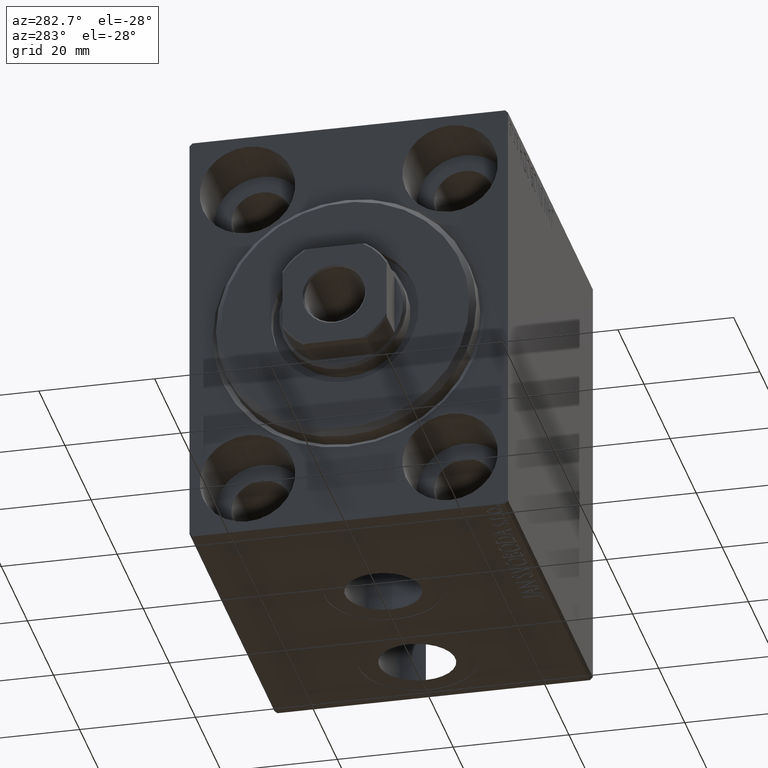
[diagram: clean part render]
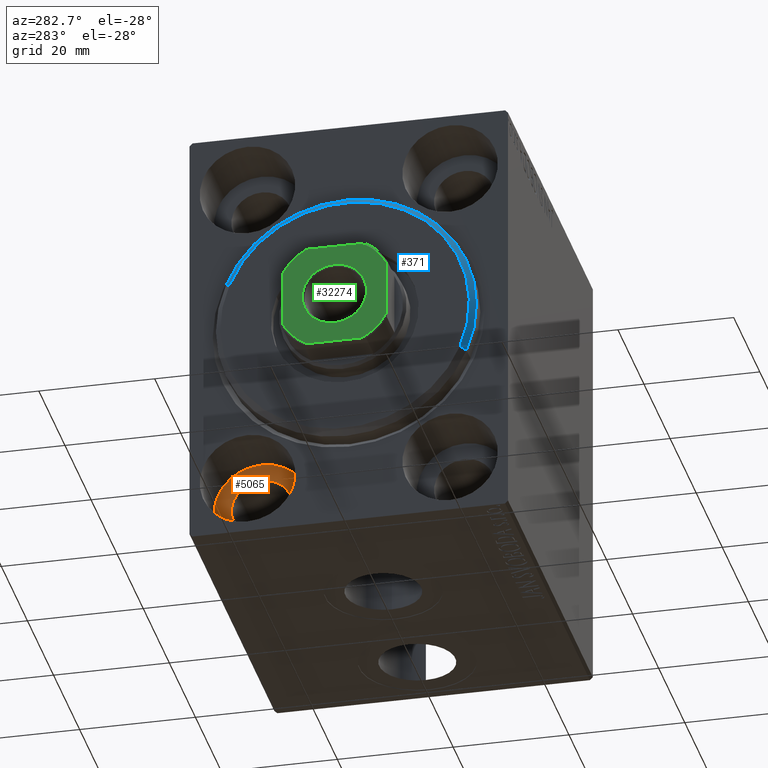
[diagram: same view with three faces highlighted in distinct colors, each labeled with its STEP entity id]
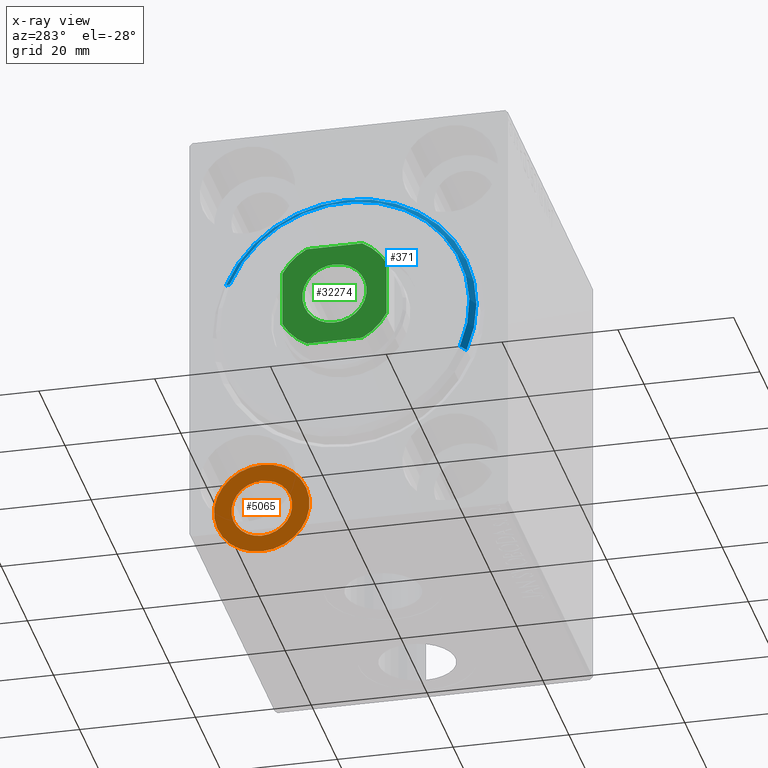
[diagram: x-ray of the same camera — body ghosted, the three highlighted faces saturated]
A machine part, auxiliary view with three faces highlighted in distinct colors.
The next image is the same camera in x-ray (body ghosted, the three faces saturated) — at least one of them is partly hidden behind the body in this view.
Their STEP definitions:

[orange] entity #5065 — the highlighted planar face has unit normal (-1, 0, 0).
#1868 = DIRECTION ( 'NONE',  ( -1.000000000000000000, 0.000000000000000000, 0.000000000000000000 ) ) ;
#3042 = AXIS2_PLACEMENT_3D ( 'NONE', #31135, #5649, #24279 ) ;
#3182 = DIRECTION ( 'NONE',  ( 0.000000000000000000, 0.000000000000000000, 1.000000000000000000 ) ) ;
#4234 = AXIS2_PLACEMENT_3D ( 'NONE', #41263, #23928, #3182 ) ;
#5065 = ADVANCED_FACE ( 'NONE', ( #31236, #27355 ), #34662, .T. ) ;
#5649 = DIRECTION ( 'NONE',  ( -1.000000000000000000, 0.000000000000000000, 0.000000000000000000 ) ) ;
#7377 = VERTEX_POINT ( 'NONE', #8417 ) ;
#8243 = ORIENTED_EDGE ( 'NONE', *, *, #23482, .F. ) ;
#8417 = CARTESIAN_POINT ( 'NONE',  ( 10.99999999999999645, 17.49999999999999645, -32.75000000000000000 ) ) ;
#13776 = CARTESIAN_POINT ( 'NONE',  ( 11.00000000000000000, 17.49999999999999645, -27.50000000000000355 ) ) ;
#15768 = AXIS2_PLACEMENT_3D ( 'NONE', #43834, #1868, #40863 ) ;
#16622 = CIRCLE ( 'NONE', #44281, 8.250000000000000000 ) ;
#17191 = DIRECTION ( 'NONE',  ( -1.000000000000000000, 0.000000000000000000, 0.000000000000000000 ) ) ;
#18908 = EDGE_CURVE ( 'NONE', #38988, #38773, #44191, .T. ) ;
#20386 = DIRECTION ( 'NONE',  ( 0.000000000000000000, 0.000000000000000000, 1.000000000000000000 ) ) ;
#23482 = EDGE_CURVE ( 'NONE', #30071, #7377, #43431, .T. ) ;
#23928 = DIRECTION ( 'NONE',  ( -1.000000000000000000, 0.000000000000000000, 0.000000000000000000 ) ) ;
#24279 = DIRECTION ( 'NONE',  ( 0.000000000000000000, 0.000000000000000000, 1.000000000000000000 ) ) ;
#24894 = CARTESIAN_POINT ( 'NONE',  ( 10.99999999999999645, 17.49999999999999645, -22.25000000000000355 ) ) ;
#26062 = EDGE_CURVE ( 'NONE', #38773, #38988, #16622, .T. ) ;
#26627 = CARTESIAN_POINT ( 'NONE',  ( 11.00000000000000000, 17.49999999999999645, -19.25000000000000355 ) ) ;
#27355 = FACE_OUTER_BOUND ( 'NONE', #29934, .T. ) ;
#29814 = CARTESIAN_POINT ( 'NONE',  ( 11.00000000000000000, 17.49999999999999645, -27.50000000000000355 ) ) ;
#29934 = EDGE_LOOP ( 'NONE', ( #42011, #39516 ) ) ;
#30071 = VERTEX_POINT ( 'NONE', #24894 ) ;
#31135 = CARTESIAN_POINT ( 'NONE',  ( 10.99999999999999645, 17.49999999999999645, -27.50000000000000355 ) ) ;
#31236 = FACE_BOUND ( 'NONE', #39069, .T. ) ;
#31872 = CARTESIAN_POINT ( 'NONE',  ( 11.00000000000000000, 17.49999999999999645, -35.75000000000000711 ) ) ;
#32888 = CIRCLE ( 'NONE', #3042, 5.250000000000000888 ) ;
#34662 = PLANE ( 'NONE',  #4234 ) ;
#36921 = AXIS2_PLACEMENT_3D ( 'NONE', #29814, #43714, #37797 ) ;
#37797 = DIRECTION ( 'NONE',  ( 0.000000000000000000, 0.000000000000000000, 1.000000000000000000 ) ) ;
#38773 = VERTEX_POINT ( 'NONE', #26627 ) ;
#38988 = VERTEX_POINT ( 'NONE', #31872 ) ;
#39069 = EDGE_LOOP ( 'NONE', ( #8243, #43747 ) ) ;
#39516 = ORIENTED_EDGE ( 'NONE', *, *, #18908, .T. ) ;
#39964 = EDGE_CURVE ( 'NONE', #7377, #30071, #32888, .T. ) ;
#40863 = DIRECTION ( 'NONE',  ( 0.000000000000000000, 0.000000000000000000, 1.000000000000000000 ) ) ;
#41263 = CARTESIAN_POINT ( 'NONE',  ( 11.00000000000000000, 17.49999999999999645, -27.50000000000000355 ) ) ;
#42011 = ORIENTED_EDGE ( 'NONE', *, *, #26062, .T. ) ;
#43431 = CIRCLE ( 'NONE', #15768, 5.250000000000000888 ) ;
#43714 = DIRECTION ( 'NONE',  ( -1.000000000000000000, 0.000000000000000000, 0.000000000000000000 ) ) ;
#43747 = ORIENTED_EDGE ( 'NONE', *, *, #39964, .F. ) ;
#43834 = CARTESIAN_POINT ( 'NONE',  ( 10.99999999999999645, 17.49999999999999645, -27.50000000000000355 ) ) ;
#44191 = CIRCLE ( 'NONE', #36921, 8.250000000000000000 ) ;
#44281 = AXIS2_PLACEMENT_3D ( 'NONE', #13776, #17191, #20386 ) ;

[blue] entity #371 — the highlighted conical surface has half-angle 45 deg.
#29 = EDGE_CURVE ( 'NONE', #9229, #985, #6282, .T. ) ;
#371 = ADVANCED_FACE ( 'NONE', ( #36620 ), #31084, .T. ) ;
#668 = ORIENTED_EDGE ( 'NONE', *, *, #24312, .F. ) ;
#985 = VERTEX_POINT ( 'NONE', #6141 ) ;
#2035 = CARTESIAN_POINT ( 'NONE',  ( 3.000000000000000000, 2.694222958124177598E-15, -21.50000000000000355 ) ) ;
#2554 = LINE ( 'NONE', #36574, #9258 ) ;
#6141 = CARTESIAN_POINT ( 'NONE',  ( 1.999999999999992228, 0.000000000000000000, 22.50000000000000355 ) ) ;
#6282 = CIRCLE ( 'NONE', #38334, 22.50000000000000355 ) ;
#6439 = DIRECTION ( 'NONE',  ( 1.000000000000000000, -0.000000000000000000, 0.000000000000000000 ) ) ;
#7764 = DIRECTION ( 'NONE',  ( -1.000000000000000000, 0.000000000000000000, 0.000000000000000000 ) ) ;
#9229 = VERTEX_POINT ( 'NONE', #35839 ) ;
#9258 = VECTOR ( 'NONE', #40873, 1000.000000000000000 ) ;
#9363 = VERTEX_POINT ( 'NONE', #2035 ) ;
#11023 = VERTEX_POINT ( 'NONE', #19000 ) ;
#12387 = ORIENTED_EDGE ( 'NONE', *, *, #29960, .F. ) ;
#13968 = DIRECTION ( 'NONE',  ( 0.000000000000000000, 0.000000000000000000, -1.000000000000000000 ) ) ;
#14541 = AXIS2_PLACEMENT_3D ( 'NONE', #34287, #6439, #13968 ) ;
#14840 = DIRECTION ( 'NONE',  ( 0.000000000000000000, 0.000000000000000000, -1.000000000000000000 ) ) ;
#15092 = VECTOR ( 'NONE', #27881, 1000.000000000000000 ) ;
#19000 = CARTESIAN_POINT ( 'NONE',  ( 3.000000000000000000, 0.000000000000000000, 21.50000000000000355 ) ) ;
#19441 = EDGE_LOOP ( 'NONE', ( #668, #12387, #35780, #36119 ) ) ;
#20153 = DIRECTION ( 'NONE',  ( 0.000000000000000000, 0.000000000000000000, 1.000000000000000000 ) ) ;
#24312 = EDGE_CURVE ( 'NONE', #9363, #9229, #2554, .T. ) ;
#24421 = EDGE_CURVE ( 'NONE', #11023, #985, #27419, .T. ) ;
#27419 = LINE ( 'NONE', #38361, #15092 ) ;
#27881 = DIRECTION ( 'NONE',  ( -0.7071067811865512365, 0.000000000000000000, 0.7071067811865439090 ) ) ;
#29960 = EDGE_CURVE ( 'NONE', #11023, #9363, #42928, .T. ) ;
#30210 = DIRECTION ( 'NONE',  ( -1.000000000000000000, 0.000000000000000000, 0.000000000000000000 ) ) ;
#31084 = CONICAL_SURFACE ( 'NONE', #35448, 21.50000000000000355, 0.7853981633974431720 ) ;
#33413 = CARTESIAN_POINT ( 'NONE',  ( 3.000000000000000000, 0.000000000000000000, 0.000000000000000000 ) ) ;
#34287 = CARTESIAN_POINT ( 'NONE',  ( 3.000000000000000000, 0.000000000000000000, 0.000000000000000000 ) ) ;
#35448 = AXIS2_PLACEMENT_3D ( 'NONE', #33413, #30210, #20153 ) ;
#35780 = ORIENTED_EDGE ( 'NONE', *, *, #24421, .T. ) ;
#35839 = CARTESIAN_POINT ( 'NONE',  ( 1.999999999999992228, 2.755455298081545172E-15, -22.50000000000000355 ) ) ;
#36119 = ORIENTED_EDGE ( 'NONE', *, *, #29, .F. ) ;
#36574 = CARTESIAN_POINT ( 'NONE',  ( 3.000000000000000000, 2.632990618166810024E-15, -21.50000000000000355 ) ) ;
#36620 = FACE_OUTER_BOUND ( 'NONE', #19441, .T. ) ;
#38334 = AXIS2_PLACEMENT_3D ( 'NONE', #39016, #7764, #14840 ) ;
#38361 = CARTESIAN_POINT ( 'NONE',  ( 3.000000000000000000, 0.000000000000000000, 21.50000000000000355 ) ) ;
#39016 = CARTESIAN_POINT ( 'NONE',  ( 1.999999999999992228, 0.000000000000000000, 0.000000000000000000 ) ) ;
#40873 = DIRECTION ( 'NONE',  ( -0.7071067811865512365, 8.659560562354888485E-17, -0.7071067811865439090 ) ) ;
#42928 = CIRCLE ( 'NONE', #14541, 21.50000000000000355 ) ;

[green] entity #32274 — the highlighted planar face has unit normal (-1, 0, 0).
#474 = EDGE_LOOP ( 'NONE', ( #20103, #37748 ) ) ;
#570 = AXIS2_PLACEMENT_3D ( 'NONE', #20631, #21510, #10603 ) ;
#651 = CARTESIAN_POINT ( 'NONE',  ( 5.549999999999998934, 0.000000000000000000, 61.99999999999999289 ) ) ;
#1991 = CIRCLE ( 'NONE', #570, 5.549999999999998934 ) ;
#2174 = DIRECTION ( 'NONE',  ( 1.000000000000000000, 0.000000000000000000, 0.000000000000000000 ) ) ;
#2568 = DIRECTION ( 'NONE',  ( -0.000000000000000000, 0.000000000000000000, 1.000000000000000000 ) ) ;
#2762 = DIRECTION ( 'NONE',  ( 1.927470528863119049E-16, -1.000000000000000000, 0.000000000000000000 ) ) ;
#2823 = DIRECTION ( 'NONE',  ( 1.000000000000000000, 0.000000000000000000, 0.000000000000000000 ) ) ;
#3590 = CARTESIAN_POINT ( 'NONE',  ( 4.800000000000035350, 8.999999999999998224, 61.99999999999999289 ) ) ;
#3688 = VERTEX_POINT ( 'NONE', #30884 ) ;
#4494 = DIRECTION ( 'NONE',  ( -0.000000000000000000, 0.000000000000000000, 1.000000000000000000 ) ) ;
#4561 = CIRCLE ( 'NONE', #44612, 5.549999999999998934 ) ;
#4728 = PLANE ( 'NONE',  #30593 ) ;
#4817 = DIRECTION ( 'NONE',  ( 0.000000000000000000, -0.000000000000000000, -1.000000000000000000 ) ) ;
#5211 = VERTEX_POINT ( 'NONE', #651 ) ;
#5347 = VERTEX_POINT ( 'NONE', #19094 ) ;
#6200 = DIRECTION ( 'NONE',  ( -1.000000000000000000, -0.000000000000000000, -0.000000000000000000 ) ) ;
#6250 = DIRECTION ( 'NONE',  ( -0.000000000000000000, 0.000000000000000000, 1.000000000000000000 ) ) ;
#6470 = DIRECTION ( 'NONE',  ( -0.000000000000000000, 0.000000000000000000, 1.000000000000000000 ) ) ;
#7783 = EDGE_LOOP ( 'NONE', ( #44571, #17416, #33315, #27132, #24278, #43798, #27918, #8065 ) ) ;
#8065 = ORIENTED_EDGE ( 'NONE', *, *, #31680, .T. ) ;
#8271 = CARTESIAN_POINT ( 'NONE',  ( 8.999999999999998224, 8.999999999999998224, 61.99999999999999289 ) ) ;
#8393 = CARTESIAN_POINT ( 'NONE',  ( -8.999999999999998224, -4.800000000000022027, 61.99999999999999289 ) ) ;
#8426 = CARTESIAN_POINT ( 'NONE',  ( -4.800000000000001599, 8.999999999999998224, 61.99999999999999289 ) ) ;
#9686 = CARTESIAN_POINT ( 'NONE',  ( 0.000000000000000000, 0.000000000000000000, 61.99999999999999289 ) ) ;
#9810 = EDGE_CURVE ( 'NONE', #31366, #15690, #26111, .T. ) ;
#10603 = DIRECTION ( 'NONE',  ( 1.000000000000000000, 0.000000000000000000, 0.000000000000000000 ) ) ;
#11364 = FACE_OUTER_BOUND ( 'NONE', #7783, .T. ) ;
#11676 = CARTESIAN_POINT ( 'NONE',  ( 0.000000000000000000, 0.000000000000000000, 61.99999999999999289 ) ) ;
#11920 = VERTEX_POINT ( 'NONE', #32991 ) ;
#12023 = FACE_BOUND ( 'NONE', #474, .T. ) ;
#12801 = LINE ( 'NONE', #33794, #29743 ) ;
#12917 = CARTESIAN_POINT ( 'NONE',  ( 4.800000000000029132, -9.000000000000001776, 61.99999999999999289 ) ) ;
#15690 = VERTEX_POINT ( 'NONE', #12917 ) ;
#15738 = VECTOR ( 'NONE', #18972, 1000.000000000000000 ) ;
#16258 = LINE ( 'NONE', #30166, #21610 ) ;
#16607 = VERTEX_POINT ( 'NONE', #8426 ) ;
#16910 = CIRCLE ( 'NONE', #22708, 10.20000000000001528 ) ;
#17202 = EDGE_CURVE ( 'NONE', #5347, #11920, #43162, .T. ) ;
#17416 = ORIENTED_EDGE ( 'NONE', *, *, #42774, .T. ) ;
#18307 = CIRCLE ( 'NONE', #43797, 10.19999999999999929 ) ;
#18972 = DIRECTION ( 'NONE',  ( -1.927470528863119049E-16, 1.000000000000000000, -0.000000000000000000 ) ) ;
#19068 = DIRECTION ( 'NONE',  ( 1.000000000000000000, 0.000000000000000000, 0.000000000000000000 ) ) ;
#19094 = CARTESIAN_POINT ( 'NONE',  ( 9.000000000000001776, -4.800000000000030020, 61.99999999999999289 ) ) ;
#20103 = ORIENTED_EDGE ( 'NONE', *, *, #43936, .T. ) ;
#20631 = CARTESIAN_POINT ( 'NONE',  ( 0.000000000000000000, 0.000000000000000000, 61.99999999999999289 ) ) ;
#21510 = DIRECTION ( 'NONE',  ( 0.000000000000000000, -0.000000000000000000, -1.000000000000000000 ) ) ;
#21610 = VECTOR ( 'NONE', #6200, 1000.000000000000000 ) ;
#21833 = DIRECTION ( 'NONE',  ( -0.000000000000000000, 0.000000000000000000, 1.000000000000000000 ) ) ;
#22708 = AXIS2_PLACEMENT_3D ( 'NONE', #33149, #2568, #36588 ) ;
#23164 = VECTOR ( 'NONE', #2174, 1000.000000000000000 ) ;
#24208 = EDGE_CURVE ( 'NONE', #38982, #16607, #16258, .T. ) ;
#24278 = ORIENTED_EDGE ( 'NONE', *, *, #27984, .T. ) ;
#25035 = EDGE_CURVE ( 'NONE', #35573, #5211, #1991, .T. ) ;
#26111 = LINE ( 'NONE', #36630, #23164 ) ;
#27132 = ORIENTED_EDGE ( 'NONE', *, *, #36045, .T. ) ;
#27918 = ORIENTED_EDGE ( 'NONE', *, *, #9810, .T. ) ;
#27984 = EDGE_CURVE ( 'NONE', #3688, #38025, #12801, .T. ) ;
#28413 = CIRCLE ( 'NONE', #43699, 10.20000000000001528 ) ;
#28922 = CARTESIAN_POINT ( 'NONE',  ( 0.000000000000000000, 0.000000000000000000, 61.99999999999999289 ) ) ;
#29743 = VECTOR ( 'NONE', #2762, 1000.000000000000000 ) ;
#29798 = CARTESIAN_POINT ( 'NONE',  ( 0.000000000000000000, 0.000000000000000000, 61.99999999999999289 ) ) ;
#30166 = CARTESIAN_POINT ( 'NONE',  ( -9.000000000000001776, 8.999999999999998224, 61.99999999999999289 ) ) ;
#30593 = AXIS2_PLACEMENT_3D ( 'NONE', #28922, #21833, #32346 ) ;
#30884 = CARTESIAN_POINT ( 'NONE',  ( -9.000000000000001776, 4.799999999999996270, 61.99999999999999289 ) ) ;
#31366 = VERTEX_POINT ( 'NONE', #40704 ) ;
#31680 = EDGE_CURVE ( 'NONE', #15690, #5347, #28413, .T. ) ;
#32274 = ADVANCED_FACE ( 'NONE', ( #12023, #11364 ), #4728, .T. ) ;
#32346 = DIRECTION ( 'NONE',  ( 1.000000000000000000, 0.000000000000000000, 0.000000000000000000 ) ) ;
#32991 = CARTESIAN_POINT ( 'NONE',  ( 8.999999999999998224, 4.800000000000033573, 61.99999999999999289 ) ) ;
#33149 = CARTESIAN_POINT ( 'NONE',  ( 0.000000000000000000, 0.000000000000000000, 61.99999999999999289 ) ) ;
#33315 = ORIENTED_EDGE ( 'NONE', *, *, #24208, .T. ) ;
#33647 = AXIS2_PLACEMENT_3D ( 'NONE', #29798, #4494, #19068 ) ;
#33794 = CARTESIAN_POINT ( 'NONE',  ( -9.000000000000001776, 8.999999999999998224, 61.99999999999999289 ) ) ;
#35573 = VERTEX_POINT ( 'NONE', #36508 ) ;
#36045 = EDGE_CURVE ( 'NONE', #16607, #3688, #18307, .T. ) ;
#36508 = CARTESIAN_POINT ( 'NONE',  ( -5.549999999999998934, 6.796789735267809794E-16, 61.99999999999999289 ) ) ;
#36588 = DIRECTION ( 'NONE',  ( 1.000000000000000000, 0.000000000000000000, 0.000000000000000000 ) ) ;
#36630 = CARTESIAN_POINT ( 'NONE',  ( -8.999999999999998224, -9.000000000000001776, 61.99999999999999289 ) ) ;
#37299 = DIRECTION ( 'NONE',  ( 1.000000000000000000, 0.000000000000000000, 0.000000000000000000 ) ) ;
#37748 = ORIENTED_EDGE ( 'NONE', *, *, #25035, .T. ) ;
#38025 = VERTEX_POINT ( 'NONE', #8393 ) ;
#38982 = VERTEX_POINT ( 'NONE', #3590 ) ;
#39273 = DIRECTION ( 'NONE',  ( 1.000000000000000000, 0.000000000000000000, 0.000000000000000000 ) ) ;
#39464 = CIRCLE ( 'NONE', #33647, 10.20000000000000995 ) ;
#40704 = CARTESIAN_POINT ( 'NONE',  ( -4.800000000000017586, -9.000000000000001776, 61.99999999999999289 ) ) ;
#41776 = EDGE_CURVE ( 'NONE', #38025, #31366, #39464, .T. ) ;
#42774 = EDGE_CURVE ( 'NONE', #11920, #38982, #16910, .T. ) ;
#43162 = LINE ( 'NONE', #8271, #15738 ) ;
#43699 = AXIS2_PLACEMENT_3D ( 'NONE', #44788, #6470, #2823 ) ;
#43797 = AXIS2_PLACEMENT_3D ( 'NONE', #9686, #6250, #37299 ) ;
#43798 = ORIENTED_EDGE ( 'NONE', *, *, #41776, .T. ) ;
#43936 = EDGE_CURVE ( 'NONE', #5211, #35573, #4561, .T. ) ;
#44571 = ORIENTED_EDGE ( 'NONE', *, *, #17202, .T. ) ;
#44612 = AXIS2_PLACEMENT_3D ( 'NONE', #11676, #4817, #39273 ) ;
#44788 = CARTESIAN_POINT ( 'NONE',  ( 0.000000000000000000, 0.000000000000000000, 61.99999999999999289 ) ) ;